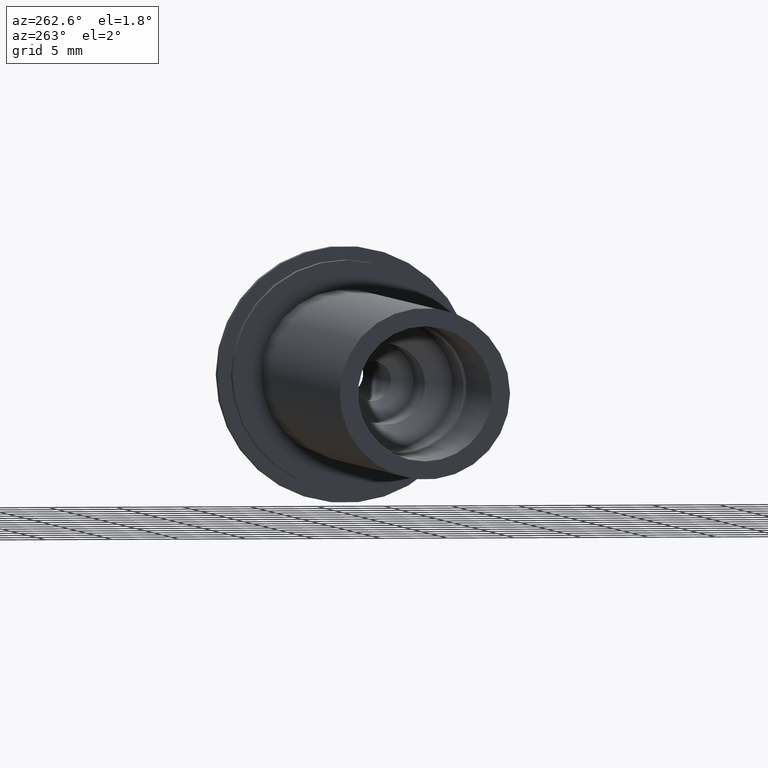
[diagram: clean part render]
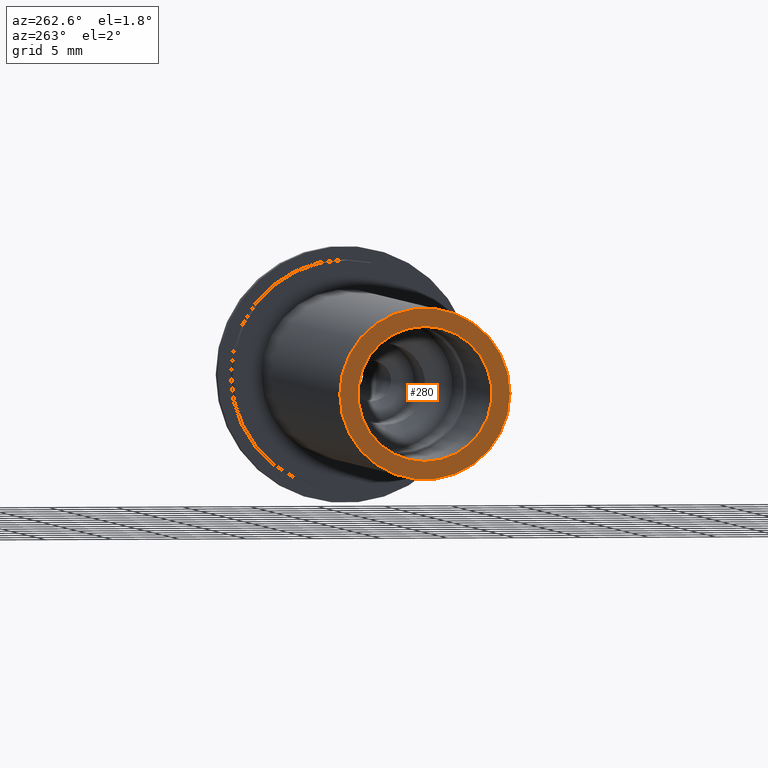
[diagram: same view with one face highlighted and labeled with its STEP entity id]
A machine part, auxiliary view. The second image highlights one B-rep face of the part: STEP entity #280.
In plain terms, the highlighted planar face has unit normal (-1, 0, 0).
Its self-contained STEP definition (entity closure, byte-faithful):
#93=FACE_BOUND('',#129,.T.);
#97=PLANE('',#329);
#112=FACE_OUTER_BOUND('',#128,.T.);
#128=EDGE_LOOP('',(#251));
#129=EDGE_LOOP('',(#252));
#162=CIRCLE('',#322,5.);
#166=CIRCLE('',#330,6.35);
#181=VERTEX_POINT('',#487);
#185=VERTEX_POINT('',#501);
#202=EDGE_CURVE('',#181,#181,#162,.T.);
#208=EDGE_CURVE('',#185,#185,#166,.T.);
#251=ORIENTED_EDGE('',*,*,#208,.F.);
#252=ORIENTED_EDGE('',*,*,#202,.T.);
#280=ADVANCED_FACE('',(#112,#93),#97,.T.);
#322=AXIS2_PLACEMENT_3D('',#488,#391,#392);
#329=AXIS2_PLACEMENT_3D('',#500,#407,#408);
#330=AXIS2_PLACEMENT_3D('',#502,#409,#410);
#391=DIRECTION('center_axis',(1.,0.,0.));
#392=DIRECTION('ref_axis',(0.,0.,1.));
#407=DIRECTION('center_axis',(-1.,0.,0.));
#408=DIRECTION('ref_axis',(0.,0.,1.));
#409=DIRECTION('center_axis',(1.,0.,0.));
#410=DIRECTION('ref_axis',(0.,0.,-1.));
#487=CARTESIAN_POINT('',(-47.,-6.12323399573677E-16,-5.));
#488=CARTESIAN_POINT('Origin',(-47.,0.,0.));
#500=CARTESIAN_POINT('Origin',(-47.,6.35,0.));
#501=CARTESIAN_POINT('',(-47.,-6.35,-7.7765071745857E-16));
#502=CARTESIAN_POINT('Origin',(-47.,0.,0.));